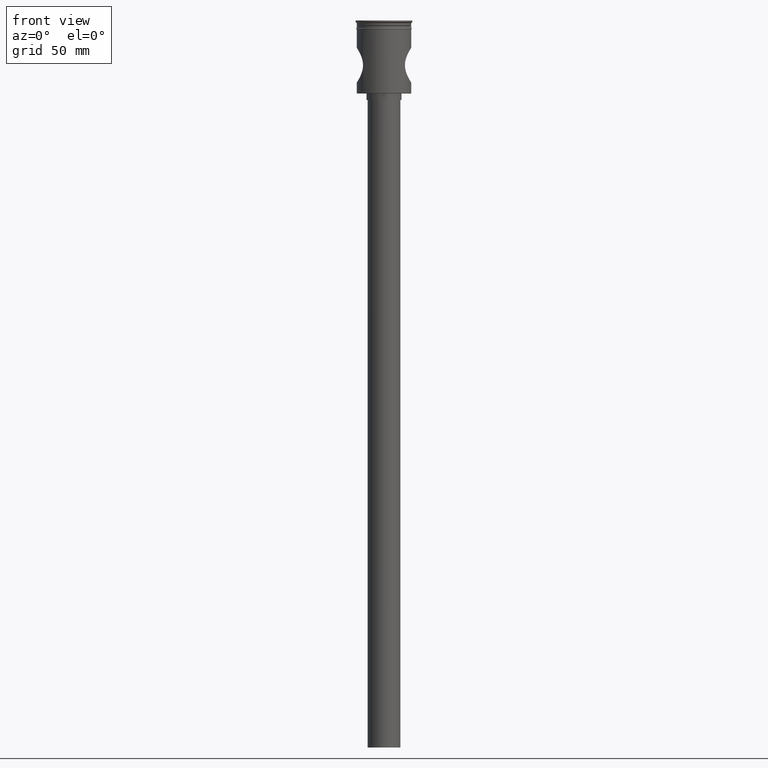
[diagram: clean part render]
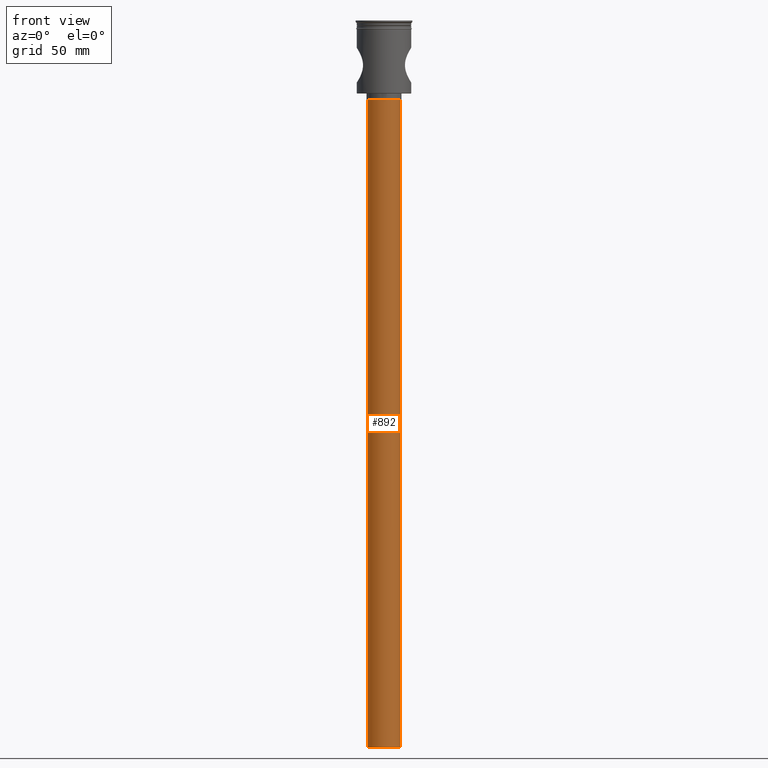
[diagram: same view with one face highlighted and labeled with its STEP entity id]
A machine part, front view. The second image highlights one B-rep face of the part: STEP entity #892.
In plain terms, the highlighted cylindrical surface (edge-blend (fillet) strip) has radius 7.5 mm, axis along (-0, -0, 1).
Its self-contained STEP definition (entity closure, byte-faithful):
#9 = VECTOR ( 'NONE', #1214, 1000.000000000000000 ) ;
#14 = EDGE_CURVE ( 'NONE', #771, #854, #612, .T. ) ;
#60 = VECTOR ( 'NONE', #1450, 1000.000000000000000 ) ;
#143 = CARTESIAN_POINT ( 'NONE',  ( 7.500000000000000000, 0.000000000000000000, -333.5000000000000000 ) ) ;
#158 = CARTESIAN_POINT ( 'NONE',  ( 7.500000000000000000, 0.000000000000000000, -36.50000000000000711 ) ) ;
#167 = CIRCLE ( 'NONE', #398, 7.500000000000000000 ) ;
#181 = VERTEX_POINT ( 'NONE', #143 ) ;
#216 = CARTESIAN_POINT ( 'NONE',  ( 7.500000000000000000, 0.000000000000000000, -333.5000000000000000 ) ) ;
#269 = ORIENTED_EDGE ( 'NONE', *, *, #1400, .F. ) ;
#381 = DIRECTION ( 'NONE',  ( 0.000000000000000000, 0.000000000000000000, -1.000000000000000000 ) ) ;
#398 = AXIS2_PLACEMENT_3D ( 'NONE', #1311, #381, #848 ) ;
#423 = CIRCLE ( 'NONE', #1087, 7.500000000000000000 ) ;
#466 = LINE ( 'NONE', #216, #9 ) ;
#502 = DIRECTION ( 'NONE',  ( 1.000000000000000000, 0.000000000000000000, 0.000000000000000000 ) ) ;
#533 = CARTESIAN_POINT ( 'NONE',  ( -7.500000000000000000, 9.184850993605147944E-16, -333.5000000000000000 ) ) ;
#612 = LINE ( 'NONE', #1094, #60 ) ;
#679 = EDGE_CURVE ( 'NONE', #181, #1520, #466, .T. ) ;
#771 = VERTEX_POINT ( 'NONE', #533 ) ;
#799 = CARTESIAN_POINT ( 'NONE',  ( 0.000000000000000000, 0.000000000000000000, -333.5000000000000000 ) ) ;
#848 = DIRECTION ( 'NONE',  ( -1.000000000000000000, 0.000000000000000000, 0.000000000000000000 ) ) ;
#854 = VERTEX_POINT ( 'NONE', #1519 ) ;
#857 = DIRECTION ( 'NONE',  ( 0.000000000000000000, 0.000000000000000000, -1.000000000000000000 ) ) ;
#892 = ADVANCED_FACE ( 'NONE', ( #1147 ), #905, .T. ) ;
#905 = CYLINDRICAL_SURFACE ( 'NONE', #1344, 7.500000000000000000 ) ;
#938 = EDGE_CURVE ( 'NONE', #1520, #854, #423, .T. ) ;
#1026 = ORIENTED_EDGE ( 'NONE', *, *, #938, .T. ) ;
#1087 = AXIS2_PLACEMENT_3D ( 'NONE', #1198, #857, #1434 ) ;
#1094 = CARTESIAN_POINT ( 'NONE',  ( -7.500000000000000000, 9.184850993605147944E-16, -333.5000000000000000 ) ) ;
#1147 = FACE_OUTER_BOUND ( 'NONE', #1488, .T. ) ;
#1198 = CARTESIAN_POINT ( 'NONE',  ( 0.000000000000000000, 0.000000000000000000, -36.50000000000000711 ) ) ;
#1214 = DIRECTION ( 'NONE',  ( -0.000000000000000000, -0.000000000000000000, 1.000000000000000000 ) ) ;
#1291 = DIRECTION ( 'NONE',  ( -0.000000000000000000, -0.000000000000000000, 1.000000000000000000 ) ) ;
#1311 = CARTESIAN_POINT ( 'NONE',  ( 0.000000000000000000, 0.000000000000000000, -333.5000000000000000 ) ) ;
#1344 = AXIS2_PLACEMENT_3D ( 'NONE', #799, #1291, #502 ) ;
#1400 = EDGE_CURVE ( 'NONE', #181, #771, #167, .T. ) ;
#1408 = ORIENTED_EDGE ( 'NONE', *, *, #679, .T. ) ;
#1426 = ORIENTED_EDGE ( 'NONE', *, *, #14, .F. ) ;
#1434 = DIRECTION ( 'NONE',  ( -1.000000000000000000, 0.000000000000000000, 0.000000000000000000 ) ) ;
#1450 = DIRECTION ( 'NONE',  ( -0.000000000000000000, -0.000000000000000000, 1.000000000000000000 ) ) ;
#1488 = EDGE_LOOP ( 'NONE', ( #1426, #269, #1408, #1026 ) ) ;
#1520 = VERTEX_POINT ( 'NONE', #158 ) ;
#1519 = CARTESIAN_POINT ( 'NONE',  ( -7.500000000000000000, 9.184850993605147944E-16, -36.50000000000000711 ) ) ;